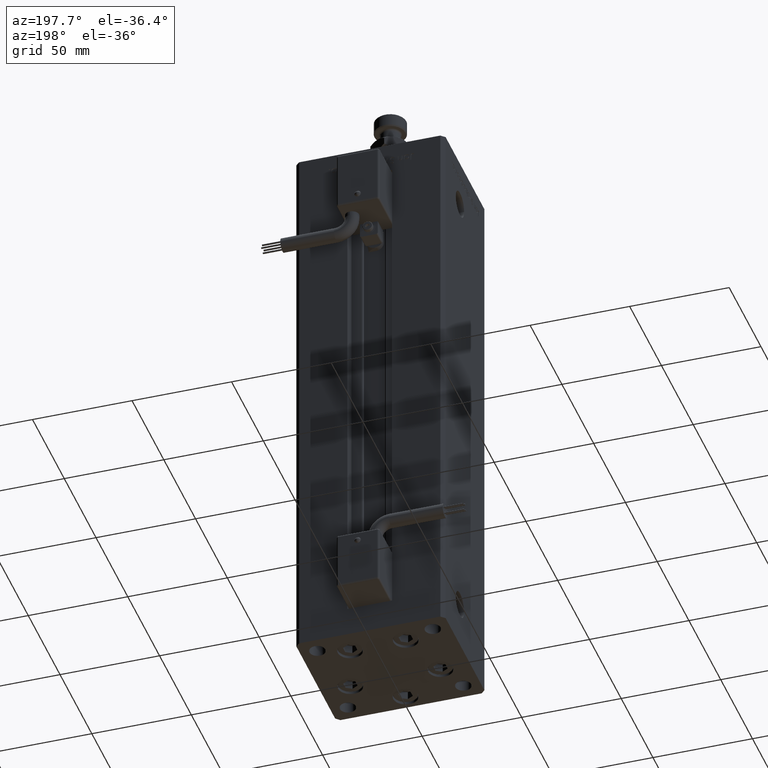
[diagram: clean part render]
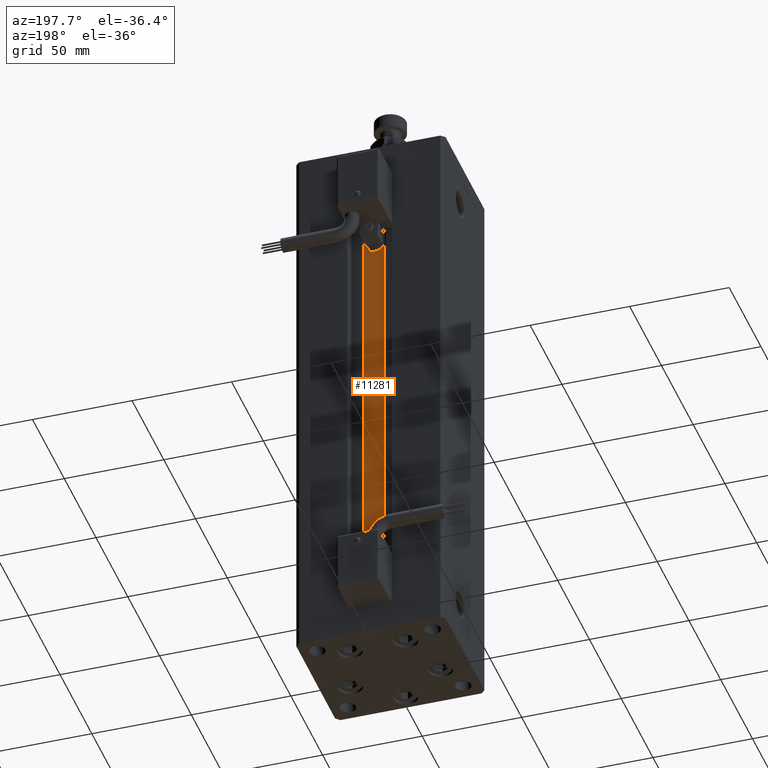
[diagram: same view with one face highlighted and labeled with its STEP entity id]
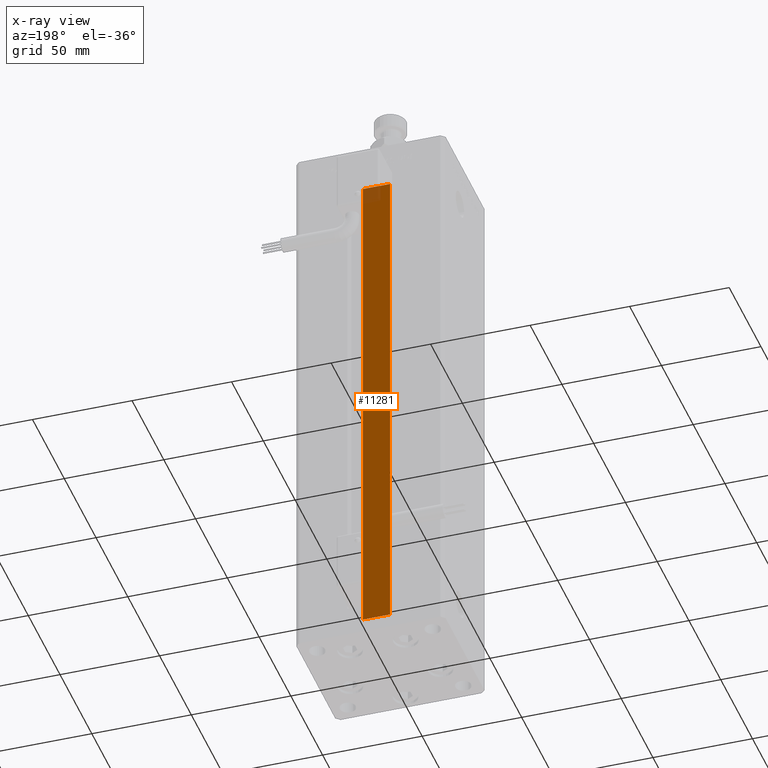
[diagram: x-ray of the same camera — body ghosted, the highlighted face saturated]
A machine part, auxiliary view. The second image highlights one B-rep face of the part: STEP entity #11281.
The next image is the same camera in x-ray: the body ghosted, the highlighted face saturated — about 2% of this face is hidden behind the body in this view.
In plain terms, the highlighted planar face has unit normal (0, -1, 0).
Its self-contained STEP definition (entity closure, byte-faithful):
#906 = PLANE ( 'NONE',  #11767 ) ;
#1189 = DIRECTION ( 'NONE',  ( 0.000000000000000000, 0.000000000000000000, -1.000000000000000000 ) ) ;
#1288 = VECTOR ( 'NONE', #49824, 1000.000000000000000 ) ;
#5542 = CARTESIAN_POINT ( 'NONE',  ( 6.876153656360466826, 21.99999999999986855, 256.0000000000000000 ) ) ;
#11281 = ADVANCED_FACE ( 'NONE', ( #32231 ), #906, .F. ) ;
#11767 = AXIS2_PLACEMENT_3D ( 'NONE', #18437, #35986, #1189 ) ;
#12066 = EDGE_CURVE ( 'NONE', #28333, #48922, #37258, .T. ) ;
#12787 = CARTESIAN_POINT ( 'NONE',  ( -6.876153656360466826, 21.99999999999986855, 256.0000000000000000 ) ) ;
#13983 = CARTESIAN_POINT ( 'NONE',  ( 0.000000000000000000, 21.99999999999986855, 256.0000000000000000 ) ) ;
#14056 = EDGE_CURVE ( 'NONE', #28333, #48610, #21073, .T. ) ;
#16078 = VECTOR ( 'NONE', #49031, 1000.000000000000000 ) ;
#18437 = CARTESIAN_POINT ( 'NONE',  ( 6.876153656360466826, 21.99999999999986855, 0.000000000000000000 ) ) ;
#20287 = CARTESIAN_POINT ( 'NONE',  ( 6.876153656360466826, 21.99999999999986855, 0.000000000000000000 ) ) ;
#21073 = LINE ( 'NONE', #33456, #42107 ) ;
#27993 = CARTESIAN_POINT ( 'NONE',  ( 6.876153656360466826, 21.99999999999986855, 0.000000000000000000 ) ) ;
#28333 = VERTEX_POINT ( 'NONE', #40123 ) ;
#29121 = CARTESIAN_POINT ( 'NONE',  ( 6.876153656360466826, 21.99999999999986855, 0.000000000000000000 ) ) ;
#32231 = FACE_OUTER_BOUND ( 'NONE', #40821, .T. ) ;
#32722 = ORIENTED_EDGE ( 'NONE', *, *, #34245, .F. ) ;
#32868 = VECTOR ( 'NONE', #36973, 1000.000000000000000 ) ;
#33456 = CARTESIAN_POINT ( 'NONE',  ( -6.876153656360466826, 21.99999999999986855, 0.000000000000000000 ) ) ;
#34245 = EDGE_CURVE ( 'NONE', #47289, #48610, #53332, .T. ) ;
#34367 = ORIENTED_EDGE ( 'NONE', *, *, #12066, .F. ) ;
#35986 = DIRECTION ( 'NONE',  ( 0.000000000000000000, -1.000000000000000000, -0.000000000000000000 ) ) ;
#36973 = DIRECTION ( 'NONE',  ( 1.000000000000000000, -0.000000000000000000, -0.000000000000000000 ) ) ;
#37258 = LINE ( 'NONE', #20287, #32868 ) ;
#40040 = ORIENTED_EDGE ( 'NONE', *, *, #45309, .F. ) ;
#40123 = CARTESIAN_POINT ( 'NONE',  ( -6.876153656360466826, 21.99999999999986855, 0.000000000000000000 ) ) ;
#40821 = EDGE_LOOP ( 'NONE', ( #40040, #34367, #44449, #32722 ) ) ;
#42107 = VECTOR ( 'NONE', #55277, 1000.000000000000000 ) ;
#44449 = ORIENTED_EDGE ( 'NONE', *, *, #14056, .T. ) ;
#45309 = EDGE_CURVE ( 'NONE', #48922, #47289, #49544, .T. ) ;
#47289 = VERTEX_POINT ( 'NONE', #5542 ) ;
#48610 = VERTEX_POINT ( 'NONE', #12787 ) ;
#48922 = VERTEX_POINT ( 'NONE', #29121 ) ;
#49031 = DIRECTION ( 'NONE',  ( -1.000000000000000000, 0.000000000000000000, 0.000000000000000000 ) ) ;
#49544 = LINE ( 'NONE', #27993, #1288 ) ;
#49824 = DIRECTION ( 'NONE',  ( -0.000000000000000000, -0.000000000000000000, 1.000000000000000000 ) ) ;
#53332 = LINE ( 'NONE', #13983, #16078 ) ;
#55277 = DIRECTION ( 'NONE',  ( -0.000000000000000000, -0.000000000000000000, 1.000000000000000000 ) ) ;